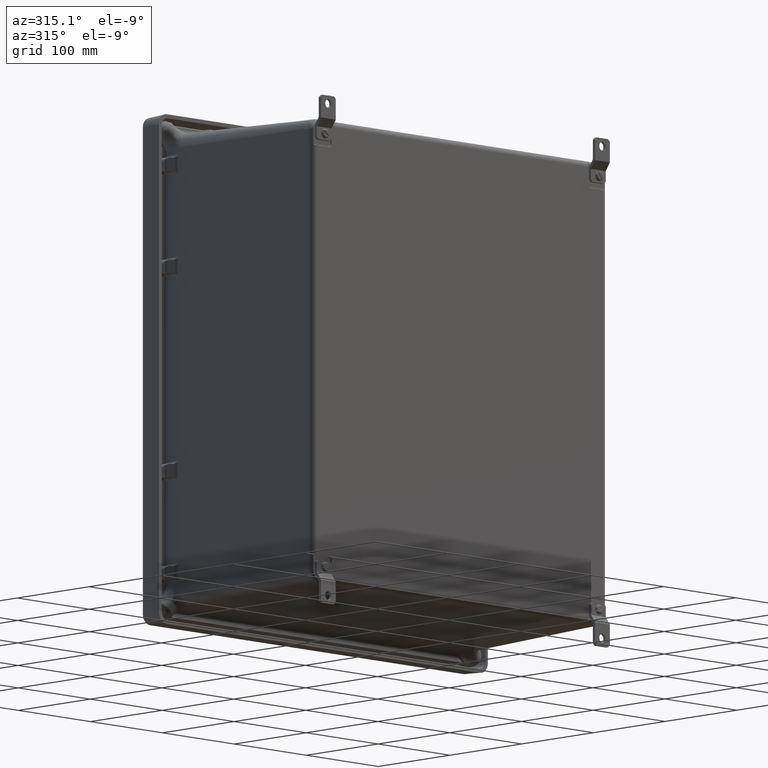
[diagram: clean part render]
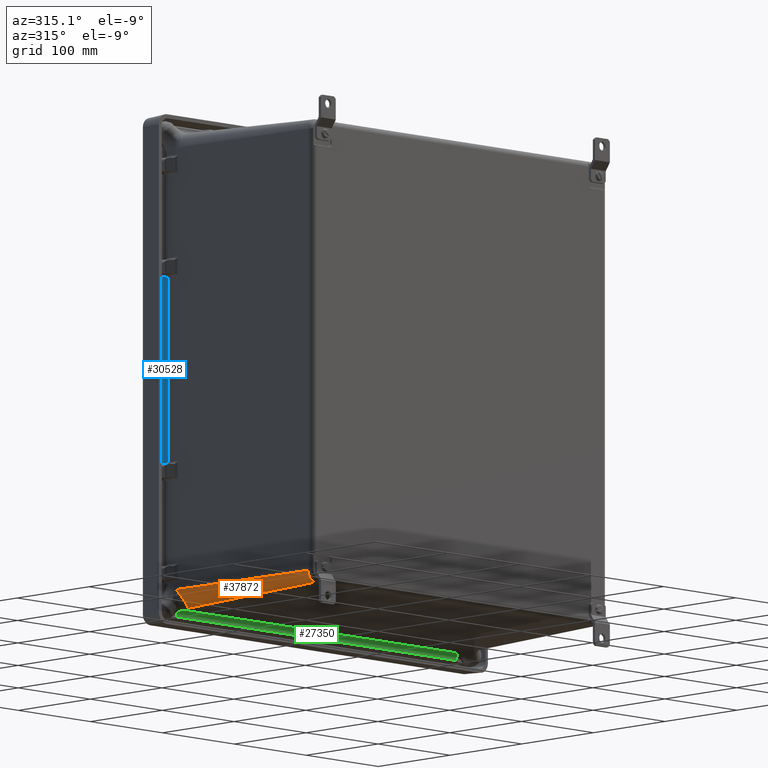
[diagram: same view with three faces highlighted in distinct colors, each labeled with its STEP entity id]
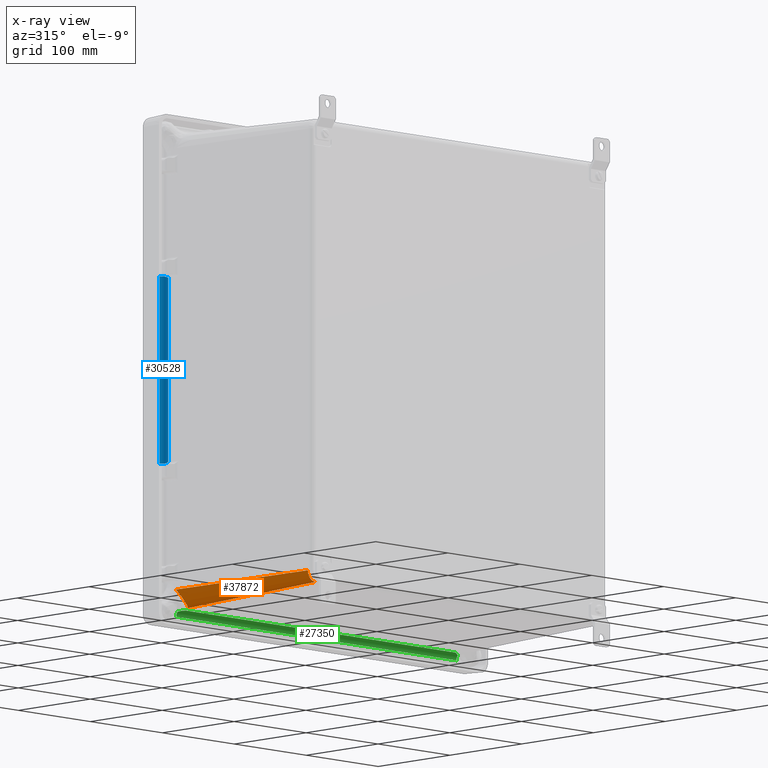
[diagram: x-ray of the same camera — body ghosted, the three highlighted faces saturated]
A machine part, auxiliary view with three faces highlighted in distinct colors.
The next image is the same camera in x-ray (body ghosted, the three faces saturated) — at least one of them is partly hidden behind the body in this view.
Their STEP definitions:

[orange] entity #37872 — the highlighted conical surface has half-angle 2 deg.
#37 = CARTESIAN_POINT ( 'NONE',  ( -8.319001555104966500, -0.9210081188483479900, -8.700964036943725300 ) ) ;
#208 = CARTESIAN_POINT ( 'NONE',  ( -8.209658012644562000, -1.137496749301659000, -9.015813477360204300 ) ) ;
#773 = CARTESIAN_POINT ( 'NONE',  ( -8.069195230630690200, -1.152042139601760800, -9.171111234834985000 ) ) ;
#936 = CARTESIAN_POINT ( 'NONE',  ( -7.663679016005649400, -0.8927979488616177800, -9.322197123023084200 ) ) ;
#1519 = DIRECTION ( 'NONE',  ( 0.0000000000000000000, 0.9993908270190957600, -0.03489949670250104600 ) ) ;
#3006 = CARTESIAN_POINT ( 'NONE',  ( -7.663679016005649400, -7.887840182787636300, -9.077924865587114300 ) ) ;
#3775 = CARTESIAN_POINT ( 'NONE',  ( -8.312287227806658400, -0.9678235231709462200, -8.754094884101057500 ) ) ;
#3922 = CARTESIAN_POINT ( 'NONE',  ( -8.168547715271868600, -1.151982037142272400, -9.072031243429158600 ) ) ;
#4501 = CARTESIAN_POINT ( 'NONE',  ( -8.012583322689454900, -1.137554129360805600, -9.212247973286737900 ) ) ;
#5901 = VECTOR ( 'NONE', #1519, 39.37007874015748900 ) ;
#7010 = AXIS2_PLACEMENT_3D ( 'NONE', #32092, #39407, #21029 ) ;
#7451 = CARTESIAN_POINT ( 'NONE',  ( -8.300992630800182700, -1.012843382108119500, -8.808028453020590100 ) ) ;
#7623 = CARTESIAN_POINT ( 'NONE',  ( -8.136643768749220100, -1.154238914667369900, -9.107981632992920900 ) ) ;
#7952 = ORIENTED_EDGE ( 'NONE', *, *, #45654, .T. ) ;
#8195 = CARTESIAN_POINT ( 'NONE',  ( -7.917442790432482400, -1.093358174092520200, -9.264970765157206900 ) ) ;
#8215 = CARTESIAN_POINT ( 'NONE',  ( -7.663679016005649400, -0.8927979488616177800, -9.322197123023084200 ) ) ;
#8858 = ORIENTED_EDGE ( 'NONE', *, *, #33218, .T. ) ;
#9225 = CARTESIAN_POINT ( 'NONE',  ( -7.663679016005649400, -7.887840182787637200, -8.665153532689254600 ) ) ;
#10320 = CIRCLE ( 'NONE', #36627, 0.6479138706312287400 ) ;
#11153 = CARTESIAN_POINT ( 'NONE',  ( -8.284463816687498600, -1.054745669414186300, -8.863479578546668200 ) ) ;
#11900 = CARTESIAN_POINT ( 'NONE',  ( -7.842259574686147900, -1.042174756349683300, -9.292326945680384800 ) ) ;
#12954 = DIRECTION ( 'NONE',  ( 0.0000000000000000000, 0.0000000000000000000, -1.000000000000000000 ) ) ;
#14914 = CARTESIAN_POINT ( 'NONE',  ( -8.262215562045490500, -1.091540803021936000, -8.919787865944517300 ) ) ;
#15664 = CARTESIAN_POINT ( 'NONE',  ( -7.787827394391642100, -0.9997366597580322800, -9.306814024534467900 ) ) ;
#15734 = CARTESIAN_POINT ( 'NONE',  ( -8.104858778744588900, -1.154238914667369900, -9.139656220464521800 ) ) ;
#15738 = LINE ( 'NONE', #27472, #5901 ) ;
#17711 = FACE_OUTER_BOUND ( 'NONE', #45633, .T. ) ;
#17865 = CARTESIAN_POINT ( 'NONE',  ( -8.076450348903508200, -7.887840182787636300, -8.665153532689254600 ) ) ;
#17889 = VERTEX_POINT ( 'NONE', #38574 ) ;
#18324 = EDGE_CURVE ( 'NONE', #37140, #36197, #10320, .T. ) ;
#18647 = CARTESIAN_POINT ( 'NONE',  ( -8.243370035422655600, -1.112286262454874800, -8.958022787186017400 ) ) ;
#18907 = CARTESIAN_POINT ( 'NONE',  ( -8.087307483252871500, -1.154238914667369900, -9.155974940211089900 ) ) ;
#19194 = EDGE_CURVE ( 'NONE', #36197, #35104, #38816, .T. ) ;
#19228 = CARTESIAN_POINT ( 'NONE',  ( -8.104858778744588900, -1.154238914667369900, -9.139656220464521800 ) ) ;
#19394 = CARTESIAN_POINT ( 'NONE',  ( -7.734637396945336400, -0.9546077688986027700, -9.316424562828084200 ) ) ;
#20745 = ORIENTED_EDGE ( 'NONE', *, *, #30383, .T. ) ;
#21029 = DIRECTION ( 'NONE',  ( 0.0000000000000000000, 0.0000000000000000000, -1.000000000000000000 ) ) ;
#21813 = DIRECTION ( 'NONE',  ( -0.0000000000000000000, -1.000000000000000000, -0.0000000000000000000 ) ) ;
#22401 = CARTESIAN_POINT ( 'NONE',  ( -8.227231595290735600, -1.125883007525762900, -8.987040592341118700 ) ) ;
#22640 = ORIENTED_EDGE ( 'NONE', *, *, #46842, .F. ) ;
#23158 = CARTESIAN_POINT ( 'NONE',  ( -7.681754803962763700, -0.9080558299847035800, -9.321664306073453000 ) ) ;
#23520 = ORIENTED_EDGE ( 'NONE', *, *, #18324, .T. ) ;
#25991 = CARTESIAN_POINT ( 'NONE',  ( -8.315003396573674300, -0.9523101322800042700, -8.736382081507983300 ) ) ;
#26149 = CARTESIAN_POINT ( 'NONE',  ( -8.196809986873915900, -1.143594907838927100, -9.034738304242193200 ) ) ;
#26456 = CONICAL_SURFACE ( 'NONE', #7010, 0.6884624999999995300, 0.03490658503988666700 ) ;
#26717 = CARTESIAN_POINT ( 'NONE',  ( -8.031914742734212400, -1.143746115534080000, -9.199208380537875500 ) ) ;
#27472 = CARTESIAN_POINT ( 'NONE',  ( -7.663679016005649400, 0.006921906211834959500, -9.353616032689252800 ) ) ;
#28975 = CARTESIAN_POINT ( 'NONE',  ( -8.352141516005650200, 0.006921906211834959500, -8.665153532689254600 ) ) ;
#29003 = B_SPLINE_CURVE_WITH_KNOTS ( 'NONE', 3,
 ( #44366, #40775, #37, #25991, #3775, #29720, #7451, #33442, #11153, #37195, #14914, #40936, #18647, #44674, #22401, #208, #26149, #3922, #29894, #7623 ),
 .UNSPECIFIED., .F., .F.,
 ( 4, 2, 2, 2, 2, 2, 2, 2, 2, 4 ),
 ( 3.925231146709437300E-017, 0.001805870332017585500, 0.003611740664035132000, 0.005417610996052677600, 0.007223481328070224100, 0.009029351660087772300, 0.009932286826096530000, 0.01083522199210528800, 0.01264109232412280600, 0.01444696265614032300 ),
 .UNSPECIFIED. ) ;
#29720 = CARTESIAN_POINT ( 'NONE',  ( -8.305281751160173100, -0.9980861036063184400, -8.789921490699946100 ) ) ;
#29894 = CARTESIAN_POINT ( 'NONE',  ( -8.153059889602740600, -1.154238914667370400, -9.090448313550973900 ) ) ;
#30383 = EDGE_CURVE ( 'NONE', #33780, #43934, #33738, .T. ) ;
#30468 = CARTESIAN_POINT ( 'NONE',  ( -7.955293249014237800, -1.114548192976075000, -9.247001230492395900 ) ) ;
#32092 = CARTESIAN_POINT ( 'NONE',  ( -7.663679016005649400, 0.006921906211834959500, -8.665153532689254600 ) ) ;
#32125 = VECTOR ( 'NONE', #47367, 39.37007874015748900 ) ;
#33218 = EDGE_CURVE ( 'NONE', #17889, #37140, #29003, .T. ) ;
#33442 = CARTESIAN_POINT ( 'NONE',  ( -8.290560304812945700, -1.041242643308188500, -8.844897302057685100 ) ) ;
#33738 = CIRCLE ( 'NONE', #34938, 0.4127713328978592200 ) ;
#33780 = VERTEX_POINT ( 'NONE', #3006 ) ;
#34182 = CARTESIAN_POINT ( 'NONE',  ( -7.860841901714396200, -1.055605799372394000, -9.286281983919217000 ) ) ;
#34938 = AXIS2_PLACEMENT_3D ( 'NONE', #9225, #35236, #12954 ) ;
#35104 = VERTEX_POINT ( 'NONE', #8215 ) ;
#35236 = DIRECTION ( 'NONE',  ( -0.0000000000000000000, 1.000000000000000000, 0.0000000000000000000 ) ) ;
#36168 = ORIENTED_EDGE ( 'NONE', *, *, #19194, .T. ) ;
#36197 = VERTEX_POINT ( 'NONE', #15734 ) ;
#36627 = AXIS2_PLACEMENT_3D ( 'NONE', #44090, #21813, #47812 ) ;
#37140 = VERTEX_POINT ( 'NONE', #45868 ) ;
#37195 = CARTESIAN_POINT ( 'NONE',  ( -8.270293596081733900, -1.079883844211212000, -8.900913741388407600 ) ) ;
#37872 = ADVANCED_FACE ( 'NONE', ( #17711 ), #26456, .T. ) ;
#37932 = CARTESIAN_POINT ( 'NONE',  ( -7.805779539872405700, -1.014261283363004900, -9.302583252229721800 ) ) ;
#38574 = CARTESIAN_POINT ( 'NONE',  ( -8.320828522099484200, -0.8897649183314932900, -8.665153532689254600 ) ) ;
#38816 = B_SPLINE_CURVE_WITH_KNOTS ( 'NONE', 3,
 ( #19228, #18907, #773, #26717, #4501, #30468, #8195, #34182, #11900, #37932, #15664, #41680, #19394, #45437, #23158, #936 ),
 .UNSPECIFIED., .F., .F.,
 ( 4, 2, 2, 2, 2, 2, 2, 4 ),
 ( 0.0000000000000000000, 0.001804330905864889000, 0.003608661811729778000, 0.007217323623459626300, 0.009021654529324582900, 0.01082598543518953900, 0.01263031634105449400, 0.01443464724691945200 ),
 .UNSPECIFIED. ) ;
#39407 = DIRECTION ( 'NONE',  ( 0.0000000000000000000, 1.000000000000000000, 0.0000000000000000000 ) ) ;
#40775 = CARTESIAN_POINT ( 'NONE',  ( -8.320289980408130500, -0.9051867346084041500, -8.683287639998368900 ) ) ;
#40827 = LINE ( 'NONE', #28975, #32125 ) ;
#40936 = CARTESIAN_POINT ( 'NONE',  ( -8.248306410381200500, -1.107314623624453100, -8.948423433767633400 ) ) ;
#41680 = CARTESIAN_POINT ( 'NONE',  ( -7.752253111714708200, -0.9699138373335729500, -9.313734661111386300 ) ) ;
#43934 = VERTEX_POINT ( 'NONE', #17865 ) ;
#44090 = CARTESIAN_POINT ( 'NONE',  ( -7.663679016005649400, -1.154238914667368200, -8.665153532689254600 ) ) ;
#44366 = CARTESIAN_POINT ( 'NONE',  ( -8.320828522099484200, -0.8897649183314932900, -8.665153532689254600 ) ) ;
#44674 = CARTESIAN_POINT ( 'NONE',  ( -8.232825221611156200, -1.121580209114933800, -8.977347808847934400 ) ) ;
#45437 = CARTESIAN_POINT ( 'NONE',  ( -7.699374813980455200, -0.9236944933870279200, -9.320386269233051000 ) ) ;
#45633 = EDGE_LOOP ( 'NONE', ( #22640, #20745, #7952, #8858, #23520, #36168 ) ) ;
#45654 = EDGE_CURVE ( 'NONE', #43934, #17889, #40827, .T. ) ;
#45868 = CARTESIAN_POINT ( 'NONE',  ( -8.136643768749220100, -1.154238914667369900, -9.107981632992920900 ) ) ;
#46842 = EDGE_CURVE ( 'NONE', #33780, #35104, #15738, .T. ) ;
#47367 = DIRECTION ( 'NONE',  ( -0.03489949670250104600, 0.9993908270190957600, 0.0000000000000000000 ) ) ;
#47812 = DIRECTION ( 'NONE',  ( 0.0000000000000000000, 0.0000000000000000000, -1.000000000000000000 ) ) ;

[blue] entity #30528 — the highlighted cylindrical surface (edge-blend (fillet) strip) has radius 6.3589 mm, axis along (-0, 0, 1).
#76 = CARTESIAN_POINT ( 'NONE',  ( -8.533323047595180500, -0.2488533566261060800, 3.676600767310750600 ) ) ;
#102 = CARTESIAN_POINT ( 'NONE',  ( -8.424873198749615700, -0.3014671666668633000, -3.676679432689249300 ) ) ;
#285 = CARTESIAN_POINT ( 'NONE',  ( -8.398277819911921700, -0.3269410970376928600, -3.673826789486125800 ) ) ;
#422 = CARTESIAN_POINT ( 'NONE',  ( -8.567799974128593700, -0.2434280937881649300, 3.677893199947469300 ) ) ;
#1669 = CARTESIAN_POINT ( 'NONE',  ( -8.334961792592110900, -0.4850410047886938900, 3.614013267310752100 ) ) ;
#1690 = EDGE_CURVE ( 'NONE', #23327, #8610, #16315, .T. ) ;
#1822 = CARTESIAN_POINT ( 'NONE',  ( -8.417726454857783500, -0.3074237892734123000, 3.676600767310753200 ) ) ;
#1862 = CARTESIAN_POINT ( 'NONE',  ( -8.585159286136342200, -0.2434280937881650700, -3.680713391599316000 ) ) ;
#2217 = B_SPLINE_CURVE_WITH_KNOTS ( 'NONE', 3,
 ( #1862, #31388, #46519, #24253 ),
 .UNSPECIFIED., .F., .F.,
 ( 4, 4 ),
 ( 0.0000000000000000000, 0.001327791390057354900 ),
 .UNSPECIFIED. ) ;
#2395 = VECTOR ( 'NONE', #6424, 39.37007874015748100 ) ;
#2522 = VERTEX_POINT ( 'NONE', #13745 ) ;
#2725 = CARTESIAN_POINT ( 'NONE',  ( -8.585159286136342200, -0.2434280937881650700, -9.372141932689249400 ) ) ;
#4002 = CARTESIAN_POINT ( 'NONE',  ( -8.375785423973942700, -0.3553484829168312400, -3.666456004214700300 ) ) ;
#4103 = EDGE_CURVE ( 'NONE', #2522, #22972, #41896, .T. ) ;
#5387 = CARTESIAN_POINT ( 'NONE',  ( -8.335555115939273600, -0.4680504471406884400, 3.621374869289007300 ) ) ;
#5704 = VERTEX_POINT ( 'NONE', #76 ) ;
#6056 = VERTEX_POINT ( 'NONE', #47923 ) ;
#6236 = DIRECTION ( 'NONE',  ( 0.0000000000000000000, 0.0000000000000000000, 1.000000000000000000 ) ) ;
#6424 = DIRECTION ( 'NONE',  ( -6.314221642584680500E-017, 0.0000000000000000000, 1.000000000000000000 ) ) ;
#7107 = ORIENTED_EDGE ( 'NONE', *, *, #37499, .T. ) ;
#7705 = CARTESIAN_POINT ( 'NONE',  ( -8.351531402632538500, -0.4021193564226112600, -3.649321478960536200 ) ) ;
#8509 = DIRECTION ( 'NONE',  ( 6.314221642584680500E-017, -0.0000000000000000000, -1.000000000000000000 ) ) ;
#8610 = VERTEX_POINT ( 'NONE', #11945 ) ;
#9467 = EDGE_CURVE ( 'NONE', #39864, #5704, #26408, .T. ) ;
#11391 = CARTESIAN_POINT ( 'NONE',  ( -8.339881360925621900, -0.4429297026734663200, -3.632275601179356900 ) ) ;
#11945 = CARTESIAN_POINT ( 'NONE',  ( -8.334961792592110900, -0.4850410047886938900, -3.614091932689249600 ) ) ;
#12555 = B_SPLINE_CURVE_WITH_KNOTS ( 'NONE', 3,
 ( #1669, #5387, #35089, #12789, #38815, #16564, #42592, #20282, #46326, #24062, #1822, #27770 ),
 .UNSPECIFIED., .F., .F.,
 ( 4, 2, 2, 2, 2, 4 ),
 ( -1.598387723557755400E-005, 0.001395720366452304500, 0.002807424610140186800, 0.004219128853828069000, 0.004924980975672010000, 0.005630833097515951100 ),
 .UNSPECIFIED. ) ;
#12789 = CARTESIAN_POINT ( 'NONE',  ( -8.345876080195136400, -0.4182436481147403500, 3.642626326158934900 ) ) ;
#13576 = DIRECTION ( 'NONE',  ( 1.000000000000000000, 0.0000000000000000000, 0.0000000000000000000 ) ) ;
#13745 = CARTESIAN_POINT ( 'NONE',  ( -8.585159286136342200, -0.2434280937881650700, -3.680713391599316000 ) ) ;
#13975 = EDGE_CURVE ( 'NONE', #34377, #8610, #21910, .T. ) ;
#14716 = CARTESIAN_POINT ( 'NONE',  ( -8.424873198749615700, -0.3014671666668637400, 3.676600767310753700 ) ) ;
#15168 = CARTESIAN_POINT ( 'NONE',  ( -8.335990324375654100, -0.4680501615141345300, -3.621460214953205400 ) ) ;
#15852 = ORIENTED_EDGE ( 'NONE', *, *, #40326, .T. ) ;
#16113 = ORIENTED_EDGE ( 'NONE', *, *, #31409, .T. ) ;
#16315 = LINE ( 'NONE', #38257, #36075 ) ;
#16564 = CARTESIAN_POINT ( 'NONE',  ( -8.366610100756119600, -0.3704105105164106100, 3.661211198579480200 ) ) ;
#16576 = AXIS2_PLACEMENT_3D ( 'NONE', #39612, #43375, #13576 ) ;
#16775 = ORIENTED_EDGE ( 'NONE', *, *, #1690, .F. ) ;
#17526 = CARTESIAN_POINT ( 'NONE',  ( -8.585159286136342200, -0.4937780937881650600, -3.676679432689249800 ) ) ;
#18132 = ORIENTED_EDGE ( 'NONE', *, *, #18620, .T. ) ;
#18620 = EDGE_CURVE ( 'NONE', #2522, #6056, #2217, .T. ) ;
#18725 = CARTESIAN_POINT ( 'NONE',  ( -8.424873198749615700, -0.3014671666668633000, -3.676679432689249300 ) ) ;
#18863 = CARTESIAN_POINT ( 'NONE',  ( -8.550514896420541100, -0.2452148479683001800, 3.676600767310751900 ) ) ;
#18891 = CARTESIAN_POINT ( 'NONE',  ( -8.334961792592110900, -0.4850410047886938900, -3.614091932689249600 ) ) ;
#19368 = CARTESIAN_POINT ( 'NONE',  ( -8.334961792592110900, -0.4850410047886938900, 3.614013267310752100 ) ) ;
#20282 = CARTESIAN_POINT ( 'NONE',  ( -8.392282583034871700, -0.3339189036854692300, 3.672154753867153100 ) ) ;
#20377 = FACE_OUTER_BOUND ( 'NONE', #35761, .T. ) ;
#21259 = DIRECTION ( 'NONE',  ( -1.000000000000000000, 0.0000000000000000000, 0.0000000000000000000 ) ) ;
#21910 = B_SPLINE_CURVE_WITH_KNOTS ( 'NONE', 3,
 ( #18725, #44761, #22487, #285, #26229, #4002, #29977, #7705, #33677, #11391, #37442, #15168, #41169, #18891 ),
 .UNSPECIFIED., .F., .F.,
 ( 4, 2, 2, 2, 2, 2, 4 ),
 ( 0.0000000000000000000, 0.0007035130791924095900, 0.001407026158384819200, 0.002814052316769579400, 0.004221078475154340900, 0.004924591554346712500, 0.005628104633539084100 ),
 .UNSPECIFIED. ) ;
#22487 = CARTESIAN_POINT ( 'NONE',  ( -8.410988555780187800, -0.3137119320861092000, -3.676041539474178300 ) ) ;
#22972 = VERTEX_POINT ( 'NONE', #27577 ) ;
#23327 = VERTEX_POINT ( 'NONE', #19368 ) ;
#24062 = CARTESIAN_POINT ( 'NONE',  ( -8.410988683001166400, -0.3137118134115836600, 3.675962885972590100 ) ) ;
#24253 = CARTESIAN_POINT ( 'NONE',  ( -8.533323047595180500, -0.2488533566261059700, -3.676679432689249300 ) ) ;
#25306 = AXIS2_PLACEMENT_3D ( 'NONE', #17526, #43556, #21259 ) ;
#26229 = CARTESIAN_POINT ( 'NONE',  ( -8.392282306006666900, -0.3339192334089102200, -3.672233341173975600 ) ) ;
#26324 = B_SPLINE_CURVE_WITH_KNOTS ( 'NONE', 3,
 ( #44912, #18863, #422, #26365 ),
 .UNSPECIFIED., .F., .F.,
 ( 4, 4 ),
 ( 0.0000000000000000000, 0.001327791390057383600 ),
 .UNSPECIFIED. ) ;
#26365 = CARTESIAN_POINT ( 'NONE',  ( -8.585159286136342200, -0.2434280937881650700, 3.680634726220818600 ) ) ;
#26408 = CIRCLE ( 'NONE', #33649, 0.2503500000000002400 ) ;
#27577 = CARTESIAN_POINT ( 'NONE',  ( -8.585159286136342200, -0.2434280937881650700, 3.680634726220818600 ) ) ;
#27770 = CARTESIAN_POINT ( 'NONE',  ( -8.424873198749615700, -0.3014671666668637400, 3.676600767310753700 ) ) ;
#28477 = CARTESIAN_POINT ( 'NONE',  ( -8.585159286136342200, -0.4937780937881650600, 3.676600767310748800 ) ) ;
#29079 = CYLINDRICAL_SURFACE ( 'NONE', #16576, 0.2503500000000002400 ) ;
#29977 = CARTESIAN_POINT ( 'NONE',  ( -8.366609672686269800, -0.3704112483768587900, -3.661289606200226500 ) ) ;
#30528 = ADVANCED_FACE ( 'NONE', ( #20377 ), #29079, .F. ) ;
#31388 = CARTESIAN_POINT ( 'NONE',  ( -8.567799974128592000, -0.2434280937881651000, -3.677971865325965900 ) ) ;
#31409 = EDGE_CURVE ( 'NONE', #6056, #34377, #41839, .T. ) ;
#31561 = ORIENTED_EDGE ( 'NONE', *, *, #4103, .F. ) ;
#32221 = DIRECTION ( 'NONE',  ( 1.000000000000000000, 0.0000000000000000000, 0.0000000000000000000 ) ) ;
#33649 = AXIS2_PLACEMENT_3D ( 'NONE', #28477, #6236, #32221 ) ;
#33677 = CARTESIAN_POINT ( 'NONE',  ( -8.345875682909055000, -0.4182448717922241400, -3.642704486443731200 ) ) ;
#34377 = VERTEX_POINT ( 'NONE', #102 ) ;
#35089 = CARTESIAN_POINT ( 'NONE',  ( -8.337883535205694600, -0.4511564076369010700, 3.628721316738867200 ) ) ;
#35761 = EDGE_LOOP ( 'NONE', ( #42153, #15852, #31561, #18132, #16113, #47498, #16775, #7107 ) ) ;
#36075 = VECTOR ( 'NONE', #8509, 39.37007874015748100 ) ;
#37442 = CARTESIAN_POINT ( 'NONE',  ( -8.338303685794018700, -0.4512409267030319500, -3.628712056536280300 ) ) ;
#37499 = EDGE_CURVE ( 'NONE', #23327, #39864, #12555, .T. ) ;
#38257 = CARTESIAN_POINT ( 'NONE',  ( -8.334961792592110900, -0.4850410047886938900, -8.665153532689254600 ) ) ;
#38815 = CARTESIAN_POINT ( 'NONE',  ( -8.351531828410163200, -0.4021182987356168300, 3.649243233546939800 ) ) ;
#39612 = CARTESIAN_POINT ( 'NONE',  ( -8.585159286136342200, -0.4937780937881650600, -9.372141932689249400 ) ) ;
#39864 = VERTEX_POINT ( 'NONE', #14716 ) ;
#40326 = EDGE_CURVE ( 'NONE', #5704, #22972, #26324, .T. ) ;
#41169 = CARTESIAN_POINT ( 'NONE',  ( -8.335257471192488100, -0.4765738774980604100, -3.617760536292958600 ) ) ;
#41839 = CIRCLE ( 'NONE', #25306, 0.2503500000000002400 ) ;
#41896 = LINE ( 'NONE', #2725, #2395 ) ;
#42153 = ORIENTED_EDGE ( 'NONE', *, *, #9467, .T. ) ;
#42592 = CARTESIAN_POINT ( 'NONE',  ( -8.375785804094723700, -0.3553479288814464500, 3.666377509847398300 ) ) ;
#43375 = DIRECTION ( 'NONE',  ( -6.314221642584680500E-017, 0.0000000000000000000, 1.000000000000000000 ) ) ;
#43556 = DIRECTION ( 'NONE',  ( 0.0000000000000000000, 0.0000000000000000000, -1.000000000000000000 ) ) ;
#44761 = CARTESIAN_POINT ( 'NONE',  ( -8.417726387406880000, -0.3074238454919606100, -3.676679432689249800 ) ) ;
#44912 = CARTESIAN_POINT ( 'NONE',  ( -8.533323047595180500, -0.2488533566261060800, 3.676600767310750600 ) ) ;
#46326 = CARTESIAN_POINT ( 'NONE',  ( -8.398278052579168900, -0.3269408411457224700, 3.673748174938243700 ) ) ;
#46519 = CARTESIAN_POINT ( 'NONE',  ( -8.550514896420539300, -0.2452148479683001200, -3.676679432689248500 ) ) ;
#47498 = ORIENTED_EDGE ( 'NONE', *, *, #13975, .T. ) ;
#47923 = CARTESIAN_POINT ( 'NONE',  ( -8.533323047595180500, -0.2488533566261059700, -3.676679432689249300 ) ) ;

[green] entity #27350 — the highlighted cylindrical surface (edge-blend (fillet) strip) has radius 6.3589 mm, axis along (-1, 0, 0).
#785 = CYLINDRICAL_SURFACE ( 'NONE', #18606, 0.2503500000000002400 ) ;
#1397 = EDGE_LOOP ( 'NONE', ( #5861, #15938, #27941, #33631, #35061, #40129 ) ) ;
#1967 = B_SPLINE_CURVE_WITH_KNOTS ( 'NONE', 3,
 ( #43998, #17940, #25442, #3233, #29186, #6932, #32927, #10635, #36658, #14374, #40395, #18110 ),
 .UNSPECIFIED., .F., .F.,
 ( 4, 2, 2, 2, 2, 4 ),
 ( 3.576224061345498200E-017, 0.004281077368135236200, 0.006421616052202872900, 0.007491885394236650500, 0.008027020065253505000, 0.008562154736270357800 ),
 .UNSPECIFIED. ) ;
#1976 = FACE_OUTER_BOUND ( 'NONE', #1397, .T. ) ;
#3233 = CARTESIAN_POINT ( 'NONE',  ( 7.497195419423109200, -0.4131887609176989100, -9.349152158298897700 ) ) ;
#3271 = CARTESIAN_POINT ( 'NONE',  ( -7.375824064916258700, -0.4850410047886938900, -9.336436309275715200 ) ) ;
#3798 = DIRECTION ( 'NONE',  ( -1.000000000000000000, 0.0000000000000000000, 0.0000000000000000000 ) ) ;
#5861 = ORIENTED_EDGE ( 'NONE', *, *, #35472, .F. ) ;
#6489 = VERTEX_POINT ( 'NONE', #36327 ) ;
#6932 = CARTESIAN_POINT ( 'NONE',  ( 7.436673096707978400, -0.4487463413147114700, -9.340258038053095300 ) ) ;
#6971 = CARTESIAN_POINT ( 'NONE',  ( -7.424475225341912400, -0.4558631661640698600, -9.337455221852591700 ) ) ;
#7242 = VERTEX_POINT ( 'NONE', #44523 ) ;
#9037 = CARTESIAN_POINT ( 'NONE',  ( 8.368734983994352600, -0.4937780937881650600, -9.586633802819946500 ) ) ;
#9487 = CARTESIAN_POINT ( 'NONE',  ( -7.663679016005649400, -0.3234458251440106600, -9.403161623025472000 ) ) ;
#10635 = CARTESIAN_POINT ( 'NONE',  ( 7.406290044016919300, -0.4668423458785434500, -9.337710251729287600 ) ) ;
#11503 = VERTEX_POINT ( 'NONE', #33413 ) ;
#11954 = VECTOR ( 'NONE', #37903, 39.37007874015748100 ) ;
#12815 = CARTESIAN_POINT ( 'NONE',  ( -7.663679016005649400, -0.4937780937881650600, -9.586633802819946500 ) ) ;
#13974 = VERTEX_POINT ( 'NONE', #41018 ) ;
#14228 = DIRECTION ( 'NONE',  ( -1.000000000000000000, 0.0000000000000000000, 0.0000000000000000000 ) ) ;
#14374 = CARTESIAN_POINT ( 'NONE',  ( 7.388047496156319800, -0.4777551515743793100, -9.336770411557866500 ) ) ;
#15938 = ORIENTED_EDGE ( 'NONE', *, *, #31485, .T. ) ;
#16586 = DIRECTION ( 'NONE',  ( 0.0000000000000000000, 0.0000000000000000000, 1.000000000000000000 ) ) ;
#17677 = LINE ( 'NONE', #44004, #45044 ) ;
#17940 = CARTESIAN_POINT ( 'NONE',  ( 7.616430212511231100, -0.3464821181833714900, -9.381775143293548800 ) ) ;
#18110 = CARTESIAN_POINT ( 'NONE',  ( 7.375894432904944500, -0.4850410047886938900, -9.336436309275715200 ) ) ;
#18146 = CARTESIAN_POINT ( 'NONE',  ( -7.568999951379840500, -0.3722400225785548200, -9.365790515028900000 ) ) ;
#18606 = AXIS2_PLACEMENT_3D ( 'NONE', #9037, #27578, #35048 ) ;
#20418 = CIRCLE ( 'NONE', #20756, 0.2503500000000002400 ) ;
#20756 = AXIS2_PLACEMENT_3D ( 'NONE', #26015, #3798, #29749 ) ;
#21375 = VERTEX_POINT ( 'NONE', #9487 ) ;
#21908 = CARTESIAN_POINT ( 'NONE',  ( -7.663679016005649400, -0.3234458251440106600, -9.403161623025472000 ) ) ;
#23183 = AXIS2_PLACEMENT_3D ( 'NONE', #12815, #38834, #16586 ) ;
#24092 = VERTEX_POINT ( 'NONE', #41515 ) ;
#24764 = EDGE_CURVE ( 'NONE', #21375, #6489, #25910, .T. ) ;
#25442 = CARTESIAN_POINT ( 'NONE',  ( 7.569066943764054800, -0.3722418541418192600, -9.365789370740850800 ) ) ;
#25837 = EDGE_CURVE ( 'NONE', #13974, #6489, #17677, .T. ) ;
#25910 = CIRCLE ( 'NONE', #23183, 0.2503500000000002400 ) ;
#26015 = CARTESIAN_POINT ( 'NONE',  ( 7.663749383994359100, -0.4937780937881650600, -9.586633802819946500 ) ) ;
#27350 = ADVANCED_FACE ( 'NONE', ( #1976 ), #785, .F. ) ;
#27578 = DIRECTION ( 'NONE',  ( -1.000000000000000000, 0.0000000000000000000, 0.0000000000000000000 ) ) ;
#27941 = ORIENTED_EDGE ( 'NONE', *, *, #24764, .T. ) ;
#29186 = CARTESIAN_POINT ( 'NONE',  ( 7.473103220249954300, -0.4272347481895905100, -9.344844389408857300 ) ) ;
#29749 = DIRECTION ( 'NONE',  ( 0.0000000000000000000, 0.0000000000000000000, 1.000000000000000000 ) ) ;
#31485 = EDGE_CURVE ( 'NONE', #7242, #21375, #43047, .T. ) ;
#31836 = EDGE_CURVE ( 'NONE', #24092, #11503, #1967, .T. ) ;
#32927 = CARTESIAN_POINT ( 'NONE',  ( 7.424525586889751900, -0.4559645388002358500, -9.339048175669844900 ) ) ;
#33413 = CARTESIAN_POINT ( 'NONE',  ( 7.375894432904944500, -0.4850410047886938900, -9.336436309275715200 ) ) ;
#33631 = ORIENTED_EDGE ( 'NONE', *, *, #25837, .F. ) ;
#34160 = CARTESIAN_POINT ( 'NONE',  ( 7.663749383994359100, -0.4850410047886938900, -9.336436309275715200 ) ) ;
#35048 = DIRECTION ( 'NONE',  ( 0.0000000000000000000, 0.0000000000000000000, 1.000000000000000000 ) ) ;
#35061 = ORIENTED_EDGE ( 'NONE', *, *, #46731, .F. ) ;
#35472 = EDGE_CURVE ( 'NONE', #7242, #11503, #41654, .T. ) ;
#36327 = CARTESIAN_POINT ( 'NONE',  ( -7.663679016005649400, -0.2434280937881650700, -9.586633802819946500 ) ) ;
#36658 = CARTESIAN_POINT ( 'NONE',  ( 7.400209310573599100, -0.4704766166235798700, -9.337343830835266100 ) ) ;
#37903 = DIRECTION ( 'NONE',  ( 1.000000000000000000, -0.0000000000000000000, -0.0000000000000000000 ) ) ;
#38834 = DIRECTION ( 'NONE',  ( -1.000000000000000000, 0.0000000000000000000, 0.0000000000000000000 ) ) ;
#40129 = ORIENTED_EDGE ( 'NONE', *, *, #31836, .T. ) ;
#40395 = CARTESIAN_POINT ( 'NONE',  ( 7.381916136126045900, -0.4814295742846014200, -9.336562423207881900 ) ) ;
#40434 = CARTESIAN_POINT ( 'NONE',  ( -7.473174743576996600, -0.4268337260060106100, -9.343607647565088200 ) ) ;
#41018 = CARTESIAN_POINT ( 'NONE',  ( 7.663749383994359100, -0.2434280937881650700, -9.586633802819946500 ) ) ;
#41515 = CARTESIAN_POINT ( 'NONE',  ( 7.663749383994359100, -0.3234458251440084400, -9.403161623025473800 ) ) ;
#41654 = LINE ( 'NONE', #34160, #11954 ) ;
#43047 = B_SPLINE_CURVE_WITH_KNOTS ( 'NONE', 3,
 ( #3271, #6971, #40434, #18146, #44190, #21908 ),
 .UNSPECIFIED., .F., .F.,
 ( 4, 2, 4 ),
 ( -3.096732728102713200E-005, 0.004292547428167985300, 0.008616062183616997300 ),
 .UNSPECIFIED. ) ;
#43998 = CARTESIAN_POINT ( 'NONE',  ( 7.663749383994359100, -0.3234458251440084400, -9.403161623025473800 ) ) ;
#44004 = CARTESIAN_POINT ( 'NONE',  ( 8.368734983994352600, -0.2434280937881650700, -9.586633802819946500 ) ) ;
#44190 = CARTESIAN_POINT ( 'NONE',  ( -7.616361530406154000, -0.3464812974481791800, -9.381775905249325500 ) ) ;
#44523 = CARTESIAN_POINT ( 'NONE',  ( -7.375824064916258700, -0.4850410047886938900, -9.336436309275715200 ) ) ;
#45044 = VECTOR ( 'NONE', #14228, 39.37007874015748100 ) ;
#46731 = EDGE_CURVE ( 'NONE', #24092, #13974, #20418, .T. ) ;